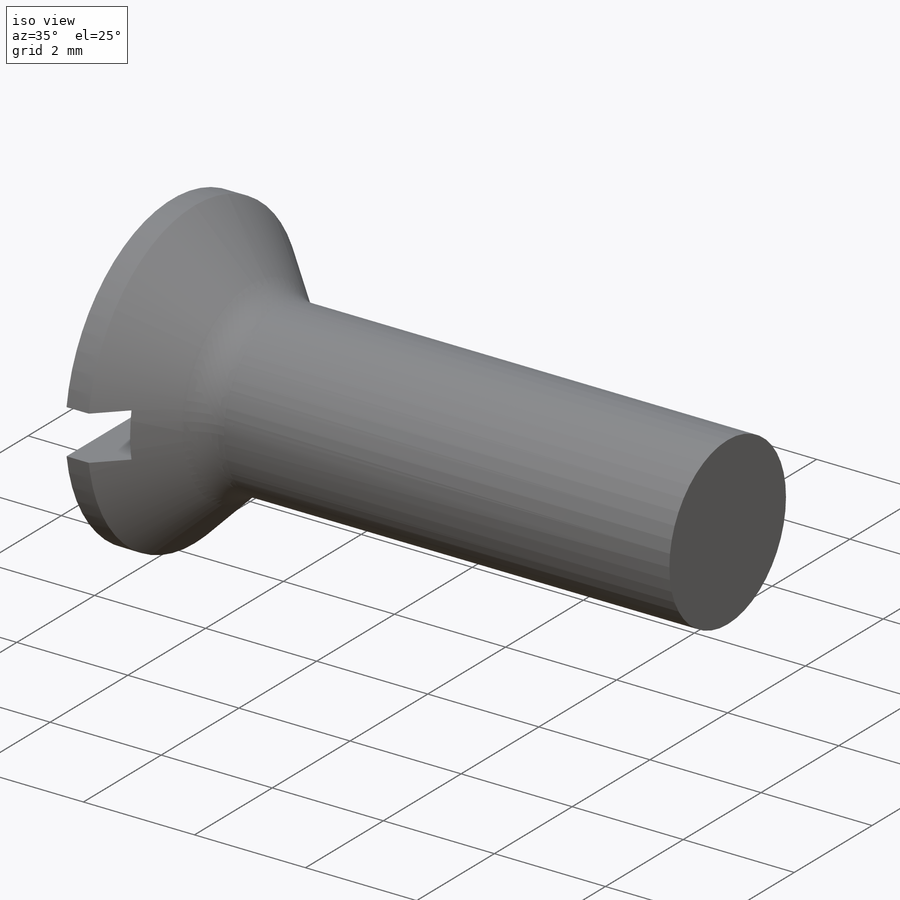
[diagram: iso view]
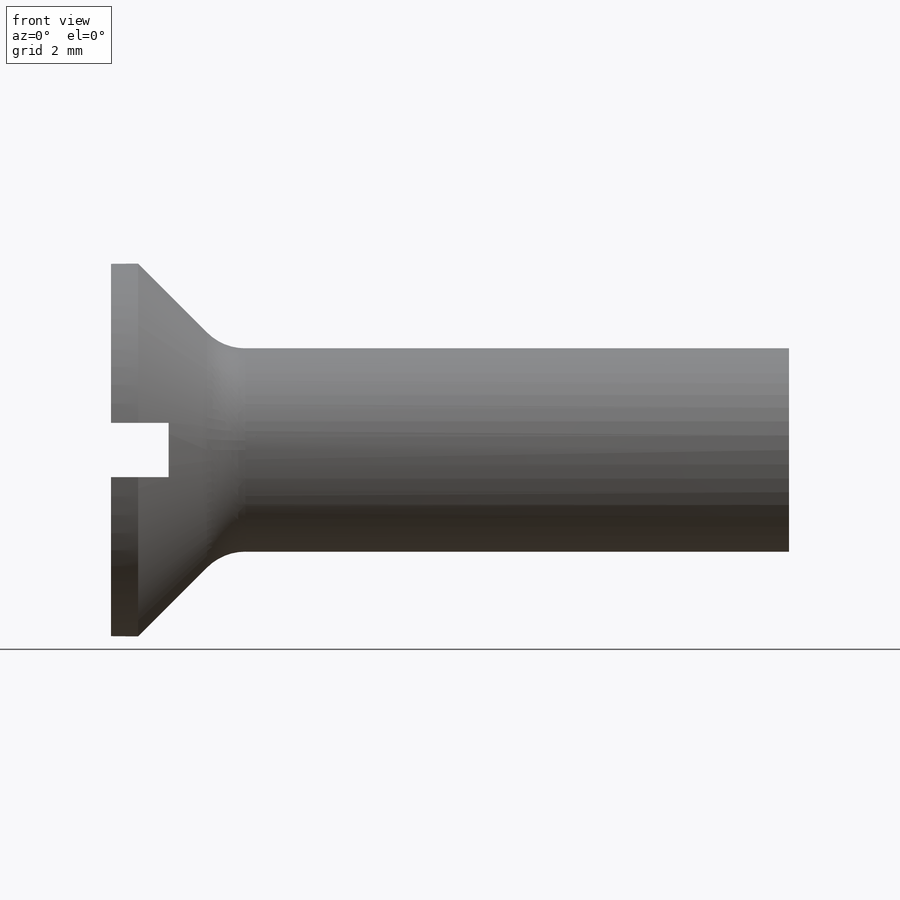
[diagram: front view]
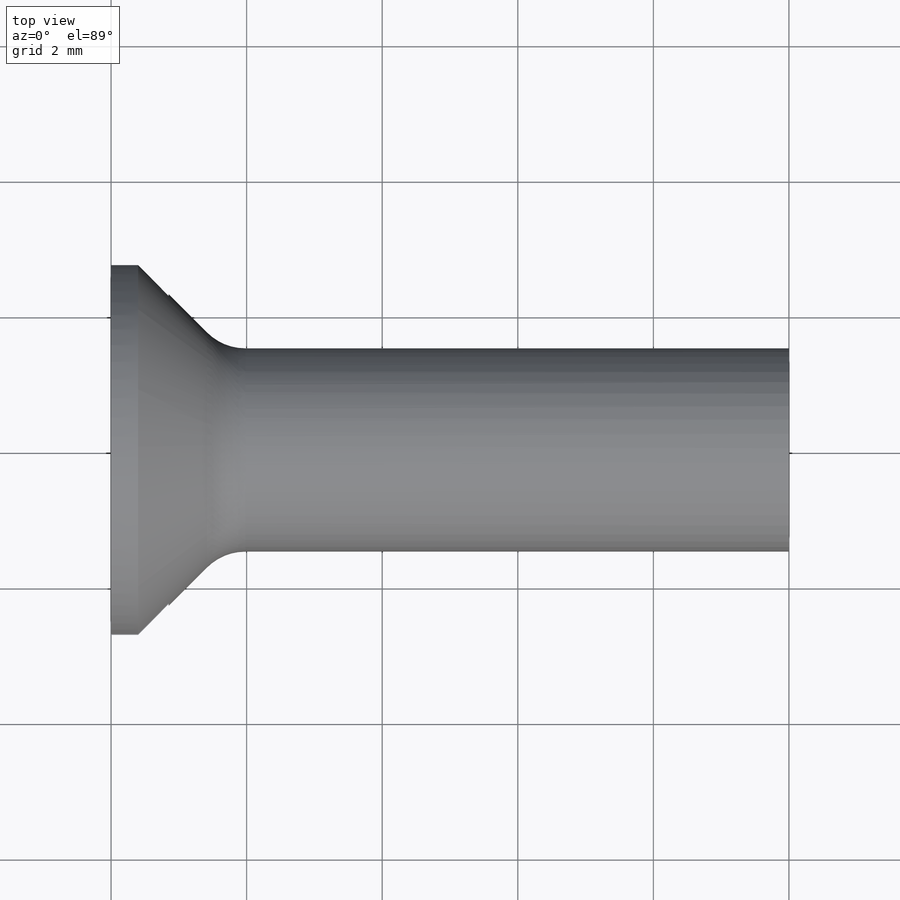
[diagram: top view]
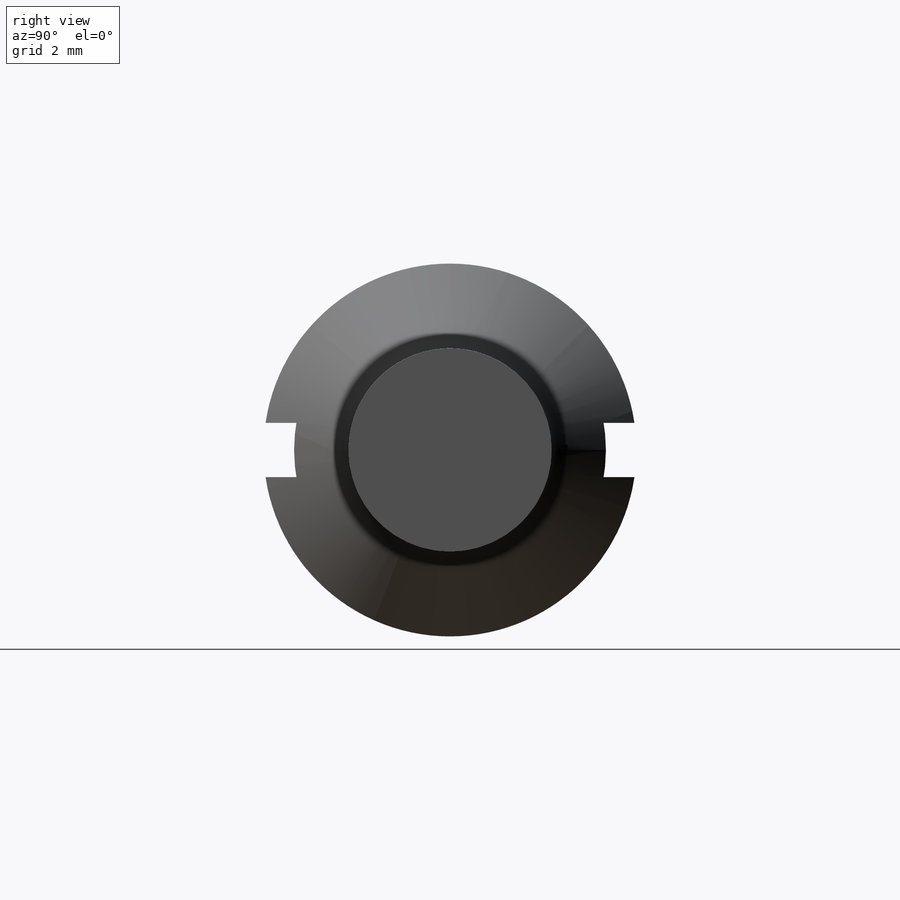
[diagram: right view]
SOLIDWORKS PART (.sldprt)
format: sldprt  version: not decoded by parser v0  size: 614,912 bytes
history: native  units: mm
features: plane x3, sketch x3, material x1, revolve x1, thread x1, fillet x1, cut_extrude x1, cut_revolve x1, pattern_linear x1 (+12 scaffold rows collapsed; 1 parser-record rows omitted)
feature tree (26):
  parser-record x1  (decoder bookkeeping rows leaked as tree rows — omitted from the tree; the rows remain in map.json)
  scaffold x12  (default folders/planes/origin — collapsed)
  material  "Material <not specified>"
  plane  "Plane1"
  plane  "Plane2"
  plane  "Plane3"
  sketch  "BodySke"  dims[c1.Diameter=3.0mm c1.D2=76.2mm c1.D3=5.842mm c1.D4=~18.513272mm c2.D4=82.0deg c2.D5=~19.681746mm c3.D4=19.3548mm c3.D5=~7.740726mm c4.D5=~80.148096deg c4.Length=10.0mm c4.Head_ht=1.65mm c4.Head_dia=5.5mm c5.D5=~8.373577mm c5.Head_ang=90.0deg c5.D6=0.4mm c5.D7=88.9mm c5.Advance=0.5mm c5.Thread_nom=10.0mm c5.Thread_lim=30.6705mm]
  revolve  "Base-Revolve"  [1 undecoded]
  thread  "ThreadCosmetic"  Diameter=7.85mm Thread_length=7.85mm Thread_minor=2.439mm  [1 undecoded]
  fillet  "Fillet1"  Radius=0.8mm
  sketch  "Sketch2"  dims[Slot_width=0.8mm D1=0.4mm D2=5.5mm D3=2.75mm]
  cut_extrude  "Slot"  Depth=0.85mm Slot_depth=0.85mm
  sketch  "ThdSchSke"  dims[c1.Thread_minor=~1.03886mm c1.Diameter=~1.413535mm c1.Start=~0.988134mm c1.D4=~4.446753mm c1.Vee=60.0deg c2.Thread_minor=~1.03886mm c2.Start=~2.540025mm c2.D1=~0.108159mm c2.D2=~0.108159mm c3.D1=~0.216319mm c3.SideAngle=55.0deg c3.D2=~0.216319mm c3.VeeAngle=70.0deg c3.Thread_minor=2.439mm c3.Overcut=3.75mm c3.Diameter=3.0mm c3.D6=~8.326268mm c4.D1=~8.326268mm c5.D1=90.0deg c5.Start=11.1125mm c6.Start=~44.450025mm c7.Start=~2.150001mm]
  cut_revolve  "ThreadSchematic"  Angle=360deg
  pattern_linear  "ThdSchPat"  Count1=17 Count2=1 Spacing1=0.490625mm Spacing2=50mm Num_threads=17 Advance=0.490625mm ConfigurationName=0mm CopiedFlag=1 PartNumberID=0mm
decode coverage: 8 of 9 modeling features carry decoded parameters
note: ~ marks probable driven/reference dimensions
note: 2 parameter values undecoded
note: suppression state not decoded; provenance and decode notes live in map.json
